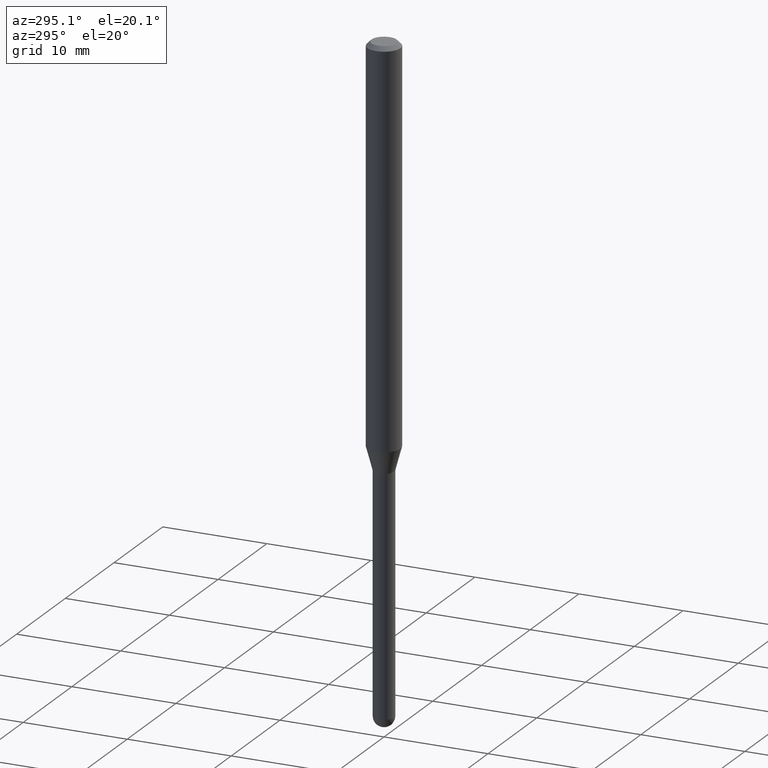
[diagram: clean part render]
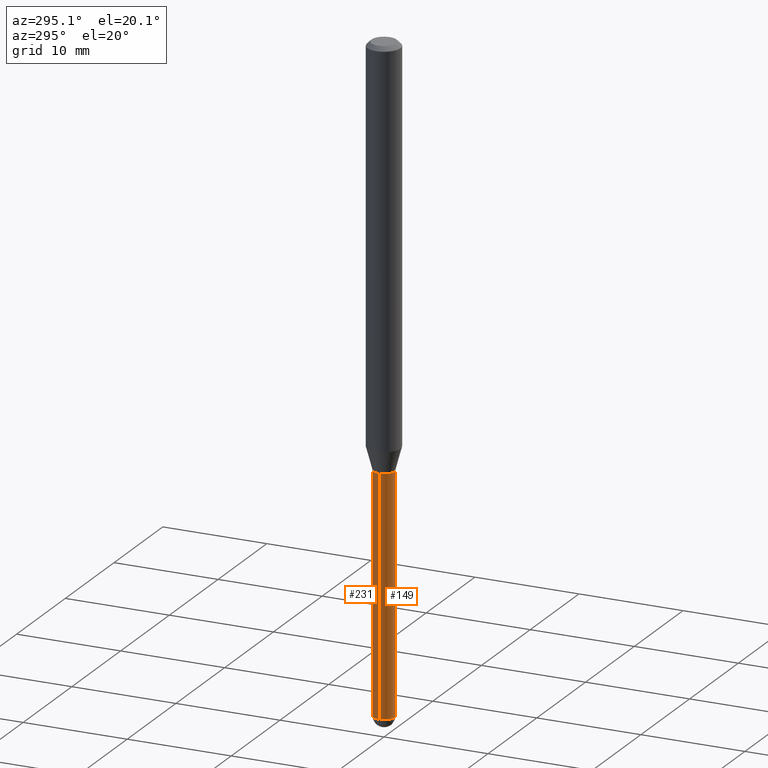
[diagram: same view with one multi-face feature highlighted, each face labeled with its STEP entity id]
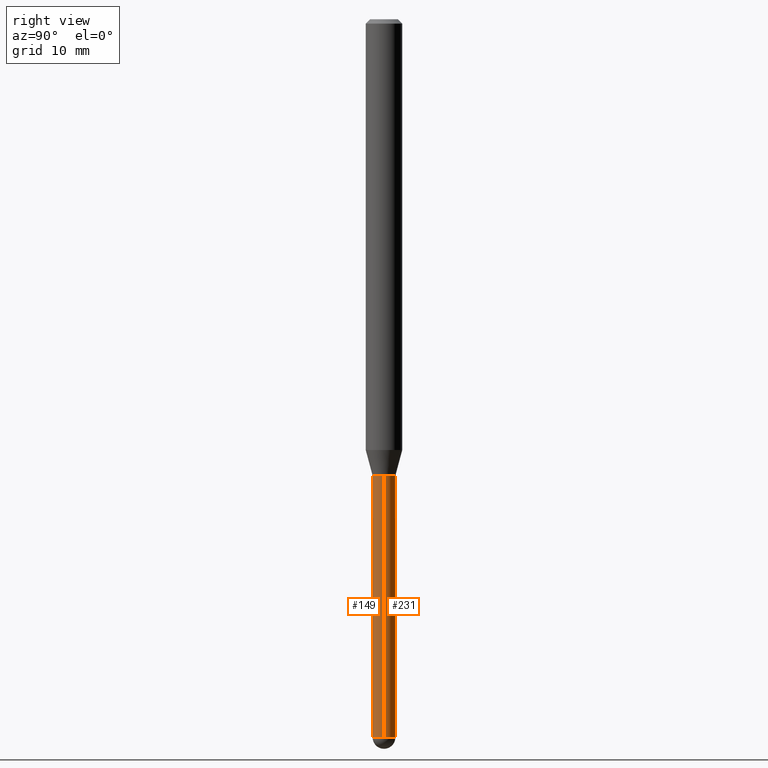
[diagram: same view with one multi-face feature highlighted, each face labeled with its STEP entity id]
A machine part, auxiliary view. The highlighted faces form ONE feature: a constant-radius fillet chain: 2 tangent blend faces with common blend radius 0.9906 mm. The faces share edges in the B-rep.
A second angle (right view) of the same feature is appended — it is thin or edge-on in the first view.
Their STEP definitions:
[1] entity #149 (Cylinder):
#16 = VECTOR ( 'NONE', #20, 39.37007874015748143 ) ;
#20 = DIRECTION ( 'NONE',  ( -2.445468806185136877E-29, 3.491481338843145188E-15, 1.000000000000000000 ) ) ;
#30 = EDGE_CURVE ( 'NONE', #126, #343, #402, .T. ) ;
#46 = EDGE_CURVE ( 'NONE', #153, #135, #364, .T. ) ;
#51 = EDGE_CURVE ( 'NONE', #343, #135, #141, .T. ) ;
#57 = CYLINDRICAL_SURFACE ( 'NONE', #147, 0.03899999999999999994 ) ;
#61 = DIRECTION ( 'NONE',  ( -2.445468806185136877E-29, 3.491481338843145188E-15, 1.000000000000000000 ) ) ;
#84 = EDGE_CURVE ( 'NONE', #470, #153, #440, .T. ) ;
#87 = CARTESIAN_POINT ( 'NONE',  ( 0.03899999999999999994, -5.733012358380444123E-15, -1.564000000000000057 ) ) ;
#95 = DIRECTION ( 'NONE',  ( -2.445468806185136597E-29, 3.491481338843145583E-15, 1.000000000000000000 ) ) ;
#126 = VERTEX_POINT ( 'NONE', #476 ) ;
#135 = VERTEX_POINT ( 'NONE', #87 ) ;
#141 = CIRCLE ( 'NONE', #498, 0.03899999999999999994 ) ;
#147 = AXIS2_PLACEMENT_3D ( 'NONE', #319, #392, #207 ) ;
#149 = ADVANCED_FACE ( 'NONE', ( #200 ), #57, .T. ) ;
#153 = VERTEX_POINT ( 'NONE', #204 ) ;
#155 = ORIENTED_EDGE ( 'NONE', *, *, #51, .F. ) ;
#162 = DIRECTION ( 'NONE',  ( -2.445468806185136597E-29, 3.491481338843145583E-15, 1.000000000000000000 ) ) ;
#200 = FACE_OUTER_BOUND ( 'NONE', #356, .T. ) ;
#204 = CARTESIAN_POINT ( 'NONE',  ( 0.03899999999999999994, -7.298941738851594355E-15, -2.460999999999999854 ) ) ;
#207 = DIRECTION ( 'NONE',  ( 1.000000000000000000, -6.982962677686265922E-15, 4.876176775795935793E-29 ) ) ;
#208 = CARTESIAN_POINT ( 'NONE',  ( -0.03899999999999999994, 2.771116669464390721E-16, -1.918384685199413078E-30 ) ) ;
#211 = ORIENTED_EDGE ( 'NONE', *, *, #46, .T. ) ;
#214 = EDGE_CURVE ( 'NONE', #126, #470, #330, .T. ) ;
#218 = AXIS2_PLACEMENT_3D ( 'NONE', #431, #393, #309 ) ;
#285 = VECTOR ( 'NONE', #61, 39.37007874015748143 ) ;
#309 = DIRECTION ( 'NONE',  ( 1.000000000000000000, -6.982962677686283277E-15, 0.000000000000000000 ) ) ;
#315 = DIRECTION ( 'NONE',  ( 1.000000000000000000, -6.982962677686283277E-15, 0.000000000000000000 ) ) ;
#319 = CARTESIAN_POINT ( 'NONE',  ( 0.000000000000000000, 0.000000000000000000, 0.000000000000000000 ) ) ;
#330 = CIRCLE ( 'NONE', #478, 0.03899999999999999994 ) ;
#343 = VERTEX_POINT ( 'NONE', #496 ) ;
#347 = CARTESIAN_POINT ( 'NONE',  ( 6.018298732021620914E-29, -8.592535574892981353E-15, -2.460999999999999854 ) ) ;
#356 = EDGE_LOOP ( 'NONE', ( #464, #407, #365, #211, #155 ) ) ;
#358 = DIRECTION ( 'NONE',  ( 1.000000000000000000, -6.982962677686258033E-15, 0.000000000000000000 ) ) ;
#364 = LINE ( 'NONE', #493, #285 ) ;
#365 = ORIENTED_EDGE ( 'NONE', *, *, #84, .T. ) ;
#382 = CARTESIAN_POINT ( 'NONE',  ( -2.771116669463784777E-16, -0.03900000000000854172, -2.460999999999999854 ) ) ;
#392 = DIRECTION ( 'NONE',  ( -2.445468806185136597E-29, 3.491481338843145583E-15, 1.000000000000000000 ) ) ;
#393 = DIRECTION ( 'NONE',  ( -2.445468806185136597E-29, 3.491481338843145583E-15, 1.000000000000000000 ) ) ;
#402 = LINE ( 'NONE', #208, #16 ) ;
#407 = ORIENTED_EDGE ( 'NONE', *, *, #214, .T. ) ;
#431 = CARTESIAN_POINT ( 'NONE',  ( 6.018298732021620914E-29, -8.592535574892981353E-15, -2.460999999999999854 ) ) ;
#440 = CIRCLE ( 'NONE', #218, 0.03899999999999999994 ) ;
#464 = ORIENTED_EDGE ( 'NONE', *, *, #30, .F. ) ;
#470 = VERTEX_POINT ( 'NONE', #382 ) ;
#476 = CARTESIAN_POINT ( 'NONE',  ( -0.03899999999999999994, -6.749494527475391014E-15, -2.460999999999999854 ) ) ;
#478 = AXIS2_PLACEMENT_3D ( 'NONE', #347, #162, #315 ) ;
#485 = CARTESIAN_POINT ( 'NONE',  ( 3.824713212873553776E-29, -5.460676813950680100E-15, -1.564000000000000057 ) ) ;
#493 = CARTESIAN_POINT ( 'NONE',  ( 0.03899999999999999994, -2.723355444297643682E-16, 1.901708942560414931E-30 ) ) ;
#496 = CARTESIAN_POINT ( 'NONE',  ( -0.03899999999999999994, -6.749494527475391014E-15, -1.564000000000000057 ) ) ;
#498 = AXIS2_PLACEMENT_3D ( 'NONE', #485, #95, #358 ) ;
[2] entity #231 (Cylinder):
#10 = CARTESIAN_POINT ( 'NONE',  ( 6.018298732021620914E-29, -8.592535574892981353E-15, -2.460999999999999854 ) ) ;
#11 = CARTESIAN_POINT ( 'NONE',  ( 2.723355444298241737E-16, 0.03899999999999134714, -2.460999999999999854 ) ) ;
#16 = VECTOR ( 'NONE', #20, 39.37007874015748143 ) ;
#20 = DIRECTION ( 'NONE',  ( -2.445468806185136877E-29, 3.491481338843145188E-15, 1.000000000000000000 ) ) ;
#28 = AXIS2_PLACEMENT_3D ( 'NONE', #503, #459, #415 ) ;
#30 = EDGE_CURVE ( 'NONE', #126, #343, #402, .T. ) ;
#38 = DIRECTION ( 'NONE',  ( 1.000000000000000000, -6.982962677686283277E-15, 0.000000000000000000 ) ) ;
#39 = CARTESIAN_POINT ( 'NONE',  ( 0.000000000000000000, 0.000000000000000000, 0.000000000000000000 ) ) ;
#46 = EDGE_CURVE ( 'NONE', #153, #135, #364, .T. ) ;
#61 = DIRECTION ( 'NONE',  ( -2.445468806185136877E-29, 3.491481338843145188E-15, 1.000000000000000000 ) ) ;
#74 = DIRECTION ( 'NONE',  ( -2.445468806185136597E-29, 3.491481338843145583E-15, 1.000000000000000000 ) ) ;
#87 = CARTESIAN_POINT ( 'NONE',  ( 0.03899999999999999994, -5.733012358380444123E-15, -1.564000000000000057 ) ) ;
#113 = VERTEX_POINT ( 'NONE', #11 ) ;
#126 = VERTEX_POINT ( 'NONE', #476 ) ;
#132 = AXIS2_PLACEMENT_3D ( 'NONE', #456, #182, #38 ) ;
#135 = VERTEX_POINT ( 'NONE', #87 ) ;
#153 = VERTEX_POINT ( 'NONE', #204 ) ;
#164 = DIRECTION ( 'NONE',  ( -2.445468806185136597E-29, 3.491481338843145583E-15, 1.000000000000000000 ) ) ;
#173 = CIRCLE ( 'NONE', #28, 0.03899999999999999994 ) ;
#177 = ORIENTED_EDGE ( 'NONE', *, *, #417, .T. ) ;
#180 = CIRCLE ( 'NONE', #132, 0.03899999999999999994 ) ;
#182 = DIRECTION ( 'NONE',  ( -2.445468806185136597E-29, 3.491481338843145583E-15, 1.000000000000000000 ) ) ;
#204 = CARTESIAN_POINT ( 'NONE',  ( 0.03899999999999999994, -7.298941738851594355E-15, -2.460999999999999854 ) ) ;
#208 = CARTESIAN_POINT ( 'NONE',  ( -0.03899999999999999994, 2.771116669464390721E-16, -1.918384685199413078E-30 ) ) ;
#213 = AXIS2_PLACEMENT_3D ( 'NONE', #10, #164, #395 ) ;
#224 = DIRECTION ( 'NONE',  ( 1.000000000000000000, -6.982962677686265922E-15, 4.876176775795935793E-29 ) ) ;
#231 = ADVANCED_FACE ( 'NONE', ( #266 ), #508, .T. ) ;
#249 = EDGE_LOOP ( 'NONE', ( #177, #490, #381, #306, #258 ) ) ;
#258 = ORIENTED_EDGE ( 'NONE', *, *, #334, .T. ) ;
#266 = FACE_OUTER_BOUND ( 'NONE', #249, .T. ) ;
#285 = VECTOR ( 'NONE', #61, 39.37007874015748143 ) ;
#306 = ORIENTED_EDGE ( 'NONE', *, *, #46, .F. ) ;
#334 = EDGE_CURVE ( 'NONE', #153, #113, #432, .T. ) ;
#343 = VERTEX_POINT ( 'NONE', #496 ) ;
#364 = LINE ( 'NONE', #493, #285 ) ;
#381 = ORIENTED_EDGE ( 'NONE', *, *, #497, .F. ) ;
#395 = DIRECTION ( 'NONE',  ( 1.000000000000000000, -6.982962677686283277E-15, 0.000000000000000000 ) ) ;
#402 = LINE ( 'NONE', #208, #16 ) ;
#415 = DIRECTION ( 'NONE',  ( 1.000000000000000000, -6.982962677686258033E-15, 0.000000000000000000 ) ) ;
#417 = EDGE_CURVE ( 'NONE', #113, #126, #180, .T. ) ;
#422 = AXIS2_PLACEMENT_3D ( 'NONE', #39, #74, #224 ) ;
#432 = CIRCLE ( 'NONE', #213, 0.03899999999999999994 ) ;
#456 = CARTESIAN_POINT ( 'NONE',  ( 6.018298732021620914E-29, -8.592535574892981353E-15, -2.460999999999999854 ) ) ;
#459 = DIRECTION ( 'NONE',  ( -2.445468806185136597E-29, 3.491481338843145583E-15, 1.000000000000000000 ) ) ;
#476 = CARTESIAN_POINT ( 'NONE',  ( -0.03899999999999999994, -6.749494527475391014E-15, -2.460999999999999854 ) ) ;
#490 = ORIENTED_EDGE ( 'NONE', *, *, #30, .T. ) ;
#493 = CARTESIAN_POINT ( 'NONE',  ( 0.03899999999999999994, -2.723355444297643682E-16, 1.901708942560414931E-30 ) ) ;
#496 = CARTESIAN_POINT ( 'NONE',  ( -0.03899999999999999994, -6.749494527475391014E-15, -1.564000000000000057 ) ) ;
#497 = EDGE_CURVE ( 'NONE', #135, #343, #173, .T. ) ;
#503 = CARTESIAN_POINT ( 'NONE',  ( 3.824713212873553776E-29, -5.460676813950680100E-15, -1.564000000000000057 ) ) ;
#508 = CYLINDRICAL_SURFACE ( 'NONE', #422, 0.03899999999999999994 ) ;